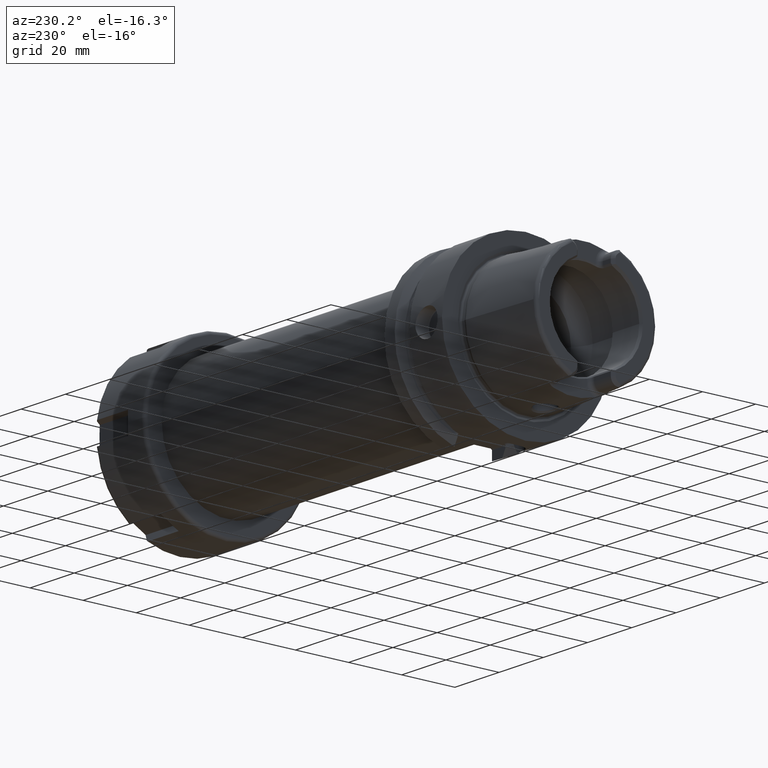
[diagram: clean part render]
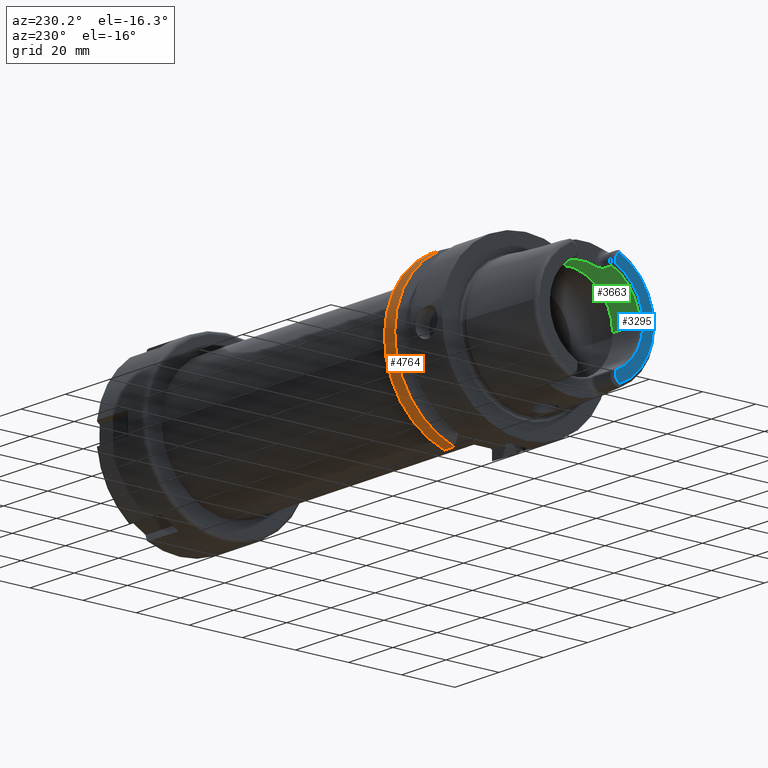
[diagram: same view with three faces highlighted in distinct colors, each labeled with its STEP entity id]
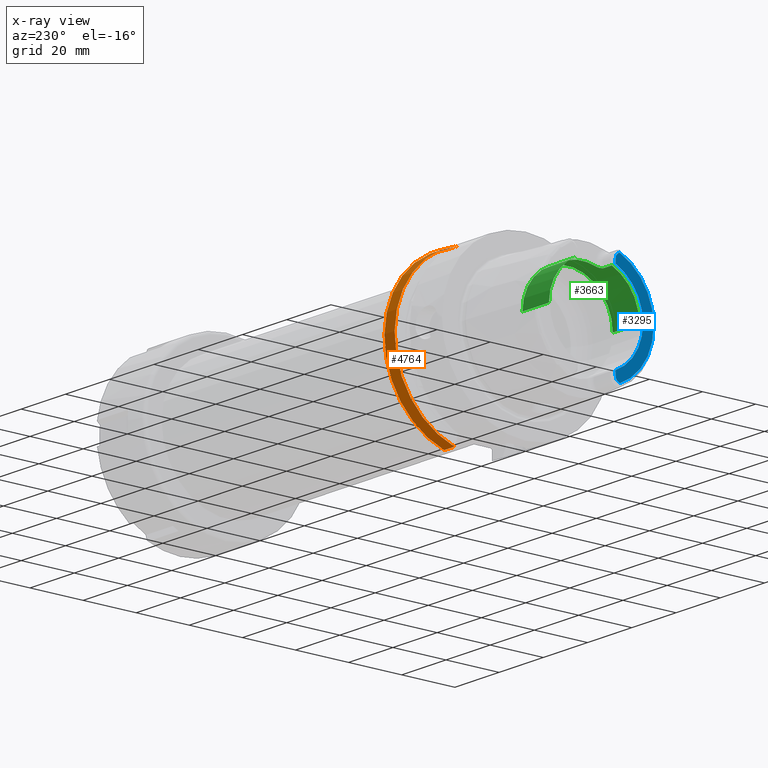
[diagram: x-ray of the same camera — body ghosted, the three highlighted faces saturated]
A machine part, auxiliary view with three faces highlighted in distinct colors.
The next image is the same camera in x-ray (body ghosted, the three faces saturated) — at least one of them is partly hidden behind the body in this view.
Their STEP definitions:

[orange] entity #4764 — the highlighted cylindrical surface (partial cylindrical patch) has radius 31.5 mm, axis along (1, 0, 0).
#1324=DIRECTION('',(-1.E0,0.E0,0.E0));
#1325=VECTOR('',#1324,4.622500925241E0);
#1326=CARTESIAN_POINT('',(2.6E1,9.0175E0,-3.018169467989E1));
#1327=LINE('',#1326,#1325);
#1557=DIRECTION('',(1.E0,0.E0,0.E0));
#1558=VECTOR('',#1557,4.622500925241E0);
#1559=CARTESIAN_POINT('',(2.137749907476E1,8.0175E0,3.046259499370E1));
#1560=LINE('',#1559,#1558);
#1565=CARTESIAN_POINT('',(2.6E1,0.E0,0.E0));
#1566=DIRECTION('',(1.E0,0.E0,0.E0));
#1567=DIRECTION('',(0.E0,2.862698412698E-1,-9.581490374568E-1));
#1568=AXIS2_PLACEMENT_3D('',#1565,#1566,#1567);
#1773=CARTESIAN_POINT('',(2.137749907476E1,9.0175E0,-3.018169467989E1));
#1780=CARTESIAN_POINT('',(2.137749907476E1,0.E0,0.E0));
#1781=DIRECTION('',(1.E0,0.E0,0.E0));
#1782=DIRECTION('',(0.E0,2.862698412698E-1,-9.581490374568E-1));
#1783=AXIS2_PLACEMENT_3D('',#1780,#1781,#1782);
#1790=CARTESIAN_POINT('',(2.137749907476E1,8.0175E0,3.046259499370E1));
#2970=VERTEX_POINT('',#1790);
#2999=VERTEX_POINT('',#1773);
#3001=CARTESIAN_POINT('',(2.6E1,9.0175E0,-3.018169467989E1));
#3002=CARTESIAN_POINT('',(2.6E1,8.0175E0,3.046259499370E1));
#3003=VERTEX_POINT('',#3001);
#3004=VERTEX_POINT('',#3002);
#4751=CARTESIAN_POINT('',(-3.49E1,0.E0,0.E0));
#4752=DIRECTION('',(1.E0,0.E0,0.E0));
#4753=DIRECTION('',(0.E0,-1.E0,0.E0));
#4754=AXIS2_PLACEMENT_3D('',#4751,#4752,#4753);
#4755=CYLINDRICAL_SURFACE('',#4754,3.15E1);
#4756=ORIENTED_EDGE('',*,*,#4465,.F.);
#4758=ORIENTED_EDGE('',*,*,#4757,.T.);
#4759=ORIENTED_EDGE('',*,*,#4722,.F.);
#4761=ORIENTED_EDGE('',*,*,#4760,.F.);
#4762=EDGE_LOOP('',(#4756,#4758,#4759,#4761));
#4763=FACE_OUTER_BOUND('',#4762,.F.);
#4764=ADVANCED_FACE('',(#4763),#4755,.T.);
#1569=CIRCLE('',#1568,3.15E1);
#1784=CIRCLE('',#1783,3.15E1);
#4465=EDGE_CURVE('',#3003,#2999,#1327,.T.);
#4722=EDGE_CURVE('',#2970,#3004,#1560,.T.);
#4757=EDGE_CURVE('',#3003,#3004,#1569,.T.);
#4760=EDGE_CURVE('',#2999,#2970,#1784,.T.);

[blue] entity #3295 — the highlighted planar face has unit normal (1, 0, 0).
#231=CARTESIAN_POINT('',(-3.2E1,0.E0,0.E0));
#232=DIRECTION('',(-1.E0,0.E0,0.E0));
#233=DIRECTION('',(0.E0,-4.056746540583E-1,-9.140175463604E-1));
#234=AXIS2_PLACEMENT_3D('',#231,#232,#233);
#315=DIRECTION('',(0.E0,0.E0,-1.E0));
#316=VECTOR('',#315,1.666552168805E0);
#317=CARTESIAN_POINT('',(-3.2E1,-7.27E0,-1.600344783120E1));
#318=LINE('',#317,#316);
#319=DIRECTION('',(0.E0,0.E0,1.E0));
#320=VECTOR('',#319,1.666552168805E0);
#321=CARTESIAN_POINT('',(-3.2E1,-7.27E0,1.600344783120E1));
#322=LINE('',#321,#320);
#323=CARTESIAN_POINT('',(-3.2E1,-9.27E0,1.767E1));
#324=DIRECTION('',(1.E0,0.E0,0.E0));
#325=DIRECTION('',(0.E0,1.E0,1.065814103640E-14));
#326=AXIS2_PLACEMENT_3D('',#323,#324,#325);
#328=DIRECTION('',(0.E0,8.373245684230E-1,-5.467061067112E-1));
#329=VECTOR('',#328,6.882400885957E-1);
#330=CARTESIAN_POINT('',(-3.2E1,-8.752868121732E0,1.972091419616E1));
#331=LINE('',#330,#329);
#332=DIRECTION('',(0.E0,8.373245684230E-1,5.467061067112E-1));
#333=VECTOR('',#332,6.882400885957E-1);
#334=CARTESIAN_POINT('',(-3.2E1,-8.752868121732E0,-1.972091419616E1));
#335=LINE('',#334,#333);
#336=CARTESIAN_POINT('',(-3.2E1,-9.27E0,-1.767E1));
#337=DIRECTION('',(-1.E0,0.E0,0.E0));
#338=DIRECTION('',(0.E0,1.E0,0.E0));
#339=AXIS2_PLACEMENT_3D('',#336,#337,#338);
#410=CARTESIAN_POINT('',(-3.2E1,0.E0,0.E0));
#411=DIRECTION('',(1.E0,0.E0,0.E0));
#412=DIRECTION('',(0.E0,-4.136004510727E-1,9.104584926686E-1));
#413=AXIS2_PLACEMENT_3D('',#410,#411,#412);
#2699=CARTESIAN_POINT('',(-3.2E1,-7.27E0,1.600344783120E1));
#2700=CARTESIAN_POINT('',(-3.2E1,-7.27E0,1.767E1));
#2701=VERTEX_POINT('',#2699);
#2702=VERTEX_POINT('',#2700);
#2703=CARTESIAN_POINT('',(-3.2E1,-8.176587786578E0,1.934464913685E1));
#2704=VERTEX_POINT('',#2703);
#2705=CARTESIAN_POINT('',(-3.2E1,-8.752868121732E0,1.972091419616E1));
#2706=VERTEX_POINT('',#2705);
#2796=CARTESIAN_POINT('',(-3.2E1,-7.27E0,-1.600344783120E1));
#2797=CARTESIAN_POINT('',(-3.2E1,-7.27E0,-1.767E1));
#2798=VERTEX_POINT('',#2796);
#2799=VERTEX_POINT('',#2797);
#2800=CARTESIAN_POINT('',(-3.2E1,-8.176587786578E0,-1.934464913685E1));
#2801=VERTEX_POINT('',#2800);
#2802=CARTESIAN_POINT('',(-3.2E1,-8.752868121732E0,-1.972091419616E1));
#2803=VERTEX_POINT('',#2802);
#3273=CARTESIAN_POINT('',(-3.2E1,0.E0,0.E0));
#3274=DIRECTION('',(1.E0,0.E0,0.E0));
#3275=DIRECTION('',(0.E0,-1.E0,0.E0));
#3276=AXIS2_PLACEMENT_3D('',#3273,#3274,#3275);
#3277=PLANE('',#3276);
#3279=ORIENTED_EDGE('',*,*,#3278,.F.);
#3281=ORIENTED_EDGE('',*,*,#3280,.F.);
#3283=ORIENTED_EDGE('',*,*,#3282,.T.);
#3285=ORIENTED_EDGE('',*,*,#3284,.T.);
#3287=ORIENTED_EDGE('',*,*,#3286,.F.);
#3288=ORIENTED_EDGE('',*,*,#3220,.F.);
#3290=ORIENTED_EDGE('',*,*,#3289,.T.);
#3292=ORIENTED_EDGE('',*,*,#3291,.F.);
#3293=EDGE_LOOP('',(#3279,#3281,#3283,#3285,#3287,#3288,#3290,#3292));
#3294=FACE_OUTER_BOUND('',#3293,.F.);
#3295=ADVANCED_FACE('',(#3294),#3277,.F.);
#235=CIRCLE('',#234,2.157607835286E1);
#327=CIRCLE('',#326,2.E0);
#340=CIRCLE('',#339,2.E0);
#414=CIRCLE('',#413,1.757735026919E1);
#3220=EDGE_CURVE('',#2803,#2706,#235,.T.);
#3278=EDGE_CURVE('',#2798,#2799,#318,.T.);
#3280=EDGE_CURVE('',#2701,#2798,#414,.T.);
#3282=EDGE_CURVE('',#2701,#2702,#322,.T.);
#3284=EDGE_CURVE('',#2702,#2704,#327,.T.);
#3286=EDGE_CURVE('',#2706,#2704,#331,.T.);
#3289=EDGE_CURVE('',#2803,#2801,#335,.T.);
#3291=EDGE_CURVE('',#2799,#2801,#340,.T.);

[green] entity #3663 — the highlighted cylindrical surface (partial cylindrical patch) has radius 17 mm, axis along (1, 0, 0).
#362=CARTESIAN_POINT('',(-3.1E1,0.E0,0.E0));
#363=DIRECTION('',(1.E0,0.E0,0.E0));
#364=DIRECTION('',(0.E0,1.E0,0.E0));
#365=AXIS2_PLACEMENT_3D('',#362,#363,#364);
#394=CARTESIAN_POINT('',(-3.1E1,0.E0,0.E0));
#395=DIRECTION('',(1.E0,0.E0,0.E0));
#396=DIRECTION('',(0.E0,-3.910839598454E-1,9.203550056102E-1));
#397=AXIS2_PLACEMENT_3D('',#394,#395,#396);
#559=DIRECTION('',(1.E0,0.E0,0.E0));
#560=VECTOR('',#559,3.5E0);
#561=CARTESIAN_POINT('',(-3.1E1,6.648427317371E0,1.564603509537E1));
#562=LINE('',#561,#560);
#563=CARTESIAN_POINT('',(-2.571132486541E1,4.77E0,1.631708000838E1));
#564=CARTESIAN_POINT('',(-2.570911463045E1,4.851899929325E0,1.629313806150E1));
#565=CARTESIAN_POINT('',(-2.571539985496E1,5.014300274441E0,1.624433189365E1));
#566=CARTESIAN_POINT('',(-2.575723226820E1,5.255574737127E0,1.616786516493E1));
#567=CARTESIAN_POINT('',(-2.583019759937E1,5.488813832187E0,1.609012650164E1));
#568=CARTESIAN_POINT('',(-2.593222755914E1,5.709311810621E0,1.601314455534E1));
#569=CARTESIAN_POINT('',(-2.606208908479E1,5.913640570765E0,1.593873381343E1));
#570=CARTESIAN_POINT('',(-2.621579663552E1,6.097621457296E0,1.586916363348E1));
#571=CARTESIAN_POINT('',(-2.639004084082E1,6.257927374534E0,1.580654307494E1));
#572=CARTESIAN_POINT('',(-2.658287946713E1,6.394281114327E0,1.575179653388E1));
#573=CARTESIAN_POINT('',(-2.679414325254E1,6.504885265694E0,1.570637036291E1));
#574=CARTESIAN_POINT('',(-2.702072491693E1,6.586740689310E0,1.567215753589E1));
#575=CARTESIAN_POINT('',(-2.725841410654E1,6.637201205541E0,1.565081274977E1));
#576=CARTESIAN_POINT('',(-2.741884128981E1,6.648427317371E0,1.564603509537E1));
#577=CARTESIAN_POINT('',(-2.75E1,6.648427317371E0,1.564603509537E1));
#579=CARTESIAN_POINT('',(-2.571132486541E1,-4.77E0,1.631708000838E1));
#580=CARTESIAN_POINT('',(-2.571132486541E1,-4.151241293882E0,1.649796280277E1));
#581=CARTESIAN_POINT('',(-2.571132889067E1,-2.893125957956E0,1.678926713017E1));
#582=CARTESIAN_POINT('',(-2.571132738120E1,-9.685489423330E-1,
1.700915920873E1));
#583=CARTESIAN_POINT('',(-2.571132738120E1,9.685489423332E-1,1.700915920873E1));
#584=CARTESIAN_POINT('',(-2.571132889067E1,2.893125957955E0,1.678926713017E1));
#585=CARTESIAN_POINT('',(-2.571132486541E1,4.151241293884E0,1.649796280277E1));
#586=CARTESIAN_POINT('',(-2.571132486541E1,4.77E0,1.631708000838E1));
#588=CARTESIAN_POINT('',(-2.75E1,-6.648427317371E0,1.564603509537E1));
#589=CARTESIAN_POINT('',(-2.741886739757E1,-6.648427317371E0,1.564603509537E1));
#590=CARTESIAN_POINT('',(-2.725846026145E1,-6.637216591931E0,1.565080624648E1));
#591=CARTESIAN_POINT('',(-2.702047669465E1,-6.586680175792E0,1.567218311946E1));
#592=CARTESIAN_POINT('',(-2.679396033382E1,-6.504789416100E0,1.570640995358E1));
#593=CARTESIAN_POINT('',(-2.658322850975E1,-6.394447887183E0,1.575172726773E1));
#594=CARTESIAN_POINT('',(-2.639118887217E1,-6.258799446744E0,1.580619508840E1));
#595=CARTESIAN_POINT('',(-2.621738949273E1,-6.099242016698E0,1.586853752436E1));
#596=CARTESIAN_POINT('',(-2.606384631874E1,-5.916012648986E0,1.593785105703E1));
#597=CARTESIAN_POINT('',(-2.593366664869E1,-5.711955003317E0,1.601220141386E1));
#598=CARTESIAN_POINT('',(-2.583107108488E1,-5.491206341112E0,1.608931480424E1));
#599=CARTESIAN_POINT('',(-2.575746962839E1,-5.256749499660E0,1.616748882623E1));
#600=CARTESIAN_POINT('',(-2.571543732099E1,-5.014873021211E0,1.624415783103E1));
#601=CARTESIAN_POINT('',(-2.570911008721E1,-4.852068278437E0,1.629308884771E1));
#602=CARTESIAN_POINT('',(-2.571132486541E1,-4.77E0,1.631708000838E1));
#604=DIRECTION('',(1.E0,0.E0,0.E0));
#605=VECTOR('',#604,3.5E0);
#606=CARTESIAN_POINT('',(-3.1E1,-6.648427317371E0,1.564603509537E1));
#607=LINE('',#606,#605);
#608=CARTESIAN_POINT('',(-1.899602540378E1,0.E0,0.E0));
#609=DIRECTION('',(1.E0,0.E0,0.E0));
#610=DIRECTION('',(0.E0,1.E0,0.E0));
#611=AXIS2_PLACEMENT_3D('',#608,#609,#610);
#666=DIRECTION('',(-1.E0,0.E0,0.E0));
#667=VECTOR('',#666,1.200397459622E1);
#668=CARTESIAN_POINT('',(-1.899602540378E1,1.7E1,0.E0));
#669=LINE('',#668,#667);
#675=DIRECTION('',(-1.E0,0.E0,0.E0));
#676=VECTOR('',#675,1.200397459622E1);
#677=CARTESIAN_POINT('',(-1.899602540378E1,-1.7E1,0.E0));
#678=LINE('',#677,#676);
#2640=CARTESIAN_POINT('',(-1.899602540378E1,1.7E1,0.E0));
#2641=VERTEX_POINT('',#2640);
#2642=CARTESIAN_POINT('',(-3.1E1,1.7E1,0.E0));
#2643=VERTEX_POINT('',#2642);
#2652=CARTESIAN_POINT('',(-1.899602540378E1,-1.7E1,0.E0));
#2653=VERTEX_POINT('',#2652);
#2654=CARTESIAN_POINT('',(-3.1E1,-1.7E1,0.E0));
#2655=VERTEX_POINT('',#2654);
#2721=CARTESIAN_POINT('',(-2.75E1,6.648427317371E0,1.564603509537E1));
#2722=VERTEX_POINT('',#2721);
#2723=CARTESIAN_POINT('',(-2.571132486541E1,4.77E0,1.631708000838E1));
#2724=VERTEX_POINT('',#2723);
#2725=CARTESIAN_POINT('',(-2.75E1,-6.648427317371E0,1.564603509537E1));
#2726=VERTEX_POINT('',#2725);
#2727=CARTESIAN_POINT('',(-2.571132486541E1,-4.77E0,1.631708000838E1));
#2728=VERTEX_POINT('',#2727);
#2733=CARTESIAN_POINT('',(-3.1E1,6.648427317371E0,1.564603509537E1));
#2734=VERTEX_POINT('',#2733);
#2735=CARTESIAN_POINT('',(-3.1E1,-6.648427317371E0,1.564603509537E1));
#2736=VERTEX_POINT('',#2735);
#3642=CARTESIAN_POINT('',(-3.41E1,0.E0,0.E0));
#3643=DIRECTION('',(1.E0,0.E0,0.E0));
#3644=DIRECTION('',(0.E0,-1.E0,0.E0));
#3645=AXIS2_PLACEMENT_3D('',#3642,#3643,#3644);
#3646=CYLINDRICAL_SURFACE('',#3645,1.7E1);
#3647=ORIENTED_EDGE('',*,*,#3379,.T.);
#3649=ORIENTED_EDGE('',*,*,#3648,.F.);
#3650=ORIENTED_EDGE('',*,*,#3527,.F.);
#3651=ORIENTED_EDGE('',*,*,#3582,.F.);
#3652=ORIENTED_EDGE('',*,*,#3597,.F.);
#3653=ORIENTED_EDGE('',*,*,#3344,.T.);
#3655=ORIENTED_EDGE('',*,*,#3654,.F.);
#3657=ORIENTED_EDGE('',*,*,#3656,.F.);
#3659=ORIENTED_EDGE('',*,*,#3658,.T.);
#3660=ORIENTED_EDGE('',*,*,#3324,.T.);
#3661=EDGE_LOOP('',(#3647,#3649,#3650,#3651,#3652,#3653,#3655,#3657,#3659,
#3660));
#3662=FACE_OUTER_BOUND('',#3661,.F.);
#3663=ADVANCED_FACE('',(#3662),#3646,.F.);
#366=CIRCLE('',#365,1.7E1);
#398=CIRCLE('',#397,1.7E1);
#578=B_SPLINE_CURVE_WITH_KNOTS('',3,(#563,#564,#565,#566,#567,#568,#569,#570,
#571,#572,#573,#574,#575,#576,#577),.UNSPECIFIED.,.F.,.F.,(4,1,1,1,1,1,1,1,1,1,
1,1,4),(0.E0,8.333333333333E-2,1.666666666667E-1,2.5E-1,3.333333333333E-1,
4.166666666667E-1,5.E-1,5.833333333333E-1,6.666666666667E-1,7.5E-1,
8.333333333333E-1,9.166666666667E-1,1.E0),.UNSPECIFIED.);
#587=B_SPLINE_CURVE_WITH_KNOTS('',3,(#579,#580,#581,#582,#583,#584,#585,#586),
.UNSPECIFIED.,.F.,.F.,(4,1,1,1,1,4),(0.E0,2.E-1,4.E-1,6.E-1,8.E-1,1.E0),
.UNSPECIFIED.);
#603=B_SPLINE_CURVE_WITH_KNOTS('',3,(#588,#589,#590,#591,#592,#593,#594,#595,
#596,#597,#598,#599,#600,#601,#602),.UNSPECIFIED.,.F.,.F.,(4,1,1,1,1,1,1,1,1,1,
1,1,4),(0.E0,8.333333333333E-2,1.666666666667E-1,2.5E-1,3.333333333333E-1,
4.166666666667E-1,5.E-1,5.833333333333E-1,6.666666666667E-1,7.5E-1,
8.333333333333E-1,9.166666666667E-1,1.E0),.UNSPECIFIED.);
#612=CIRCLE('',#611,1.7E1);
#3324=EDGE_CURVE('',#2643,#2734,#366,.T.);
#3344=EDGE_CURVE('',#2736,#2655,#398,.T.);
#3379=EDGE_CURVE('',#2734,#2722,#562,.T.);
#3527=EDGE_CURVE('',#2728,#2724,#587,.T.);
#3582=EDGE_CURVE('',#2726,#2728,#603,.T.);
#3597=EDGE_CURVE('',#2736,#2726,#607,.T.);
#3648=EDGE_CURVE('',#2724,#2722,#578,.T.);
#3654=EDGE_CURVE('',#2653,#2655,#678,.T.);
#3656=EDGE_CURVE('',#2641,#2653,#612,.T.);
#3658=EDGE_CURVE('',#2641,#2643,#669,.T.);